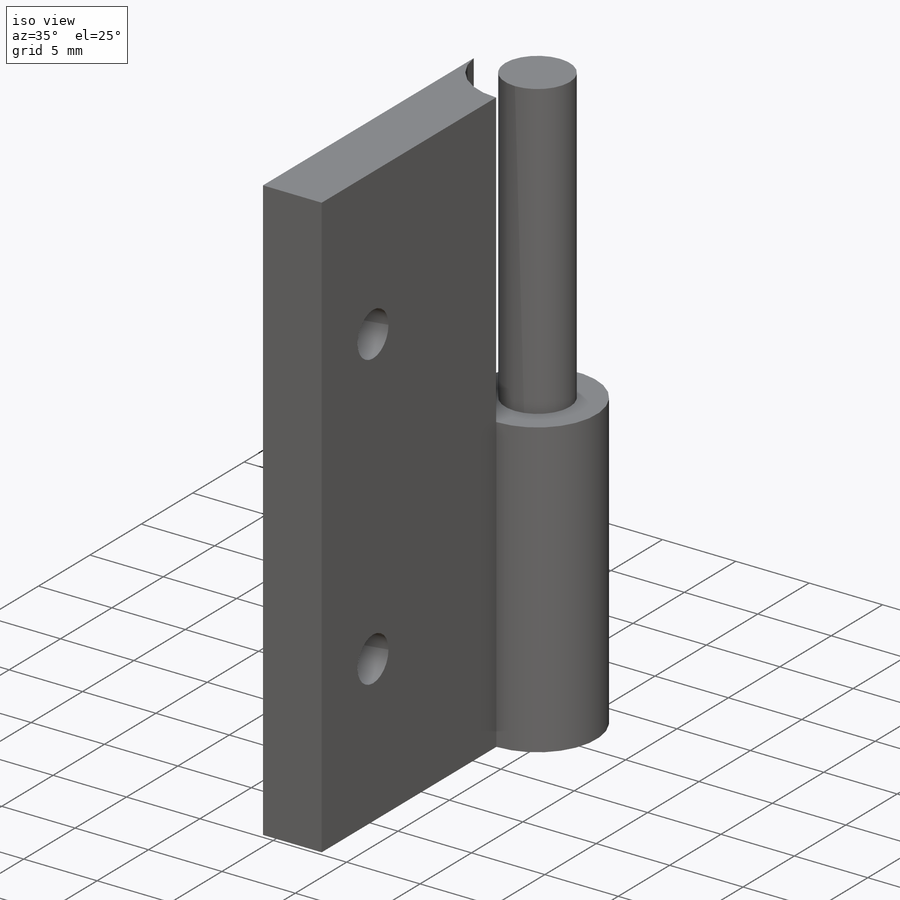
[diagram: iso view]
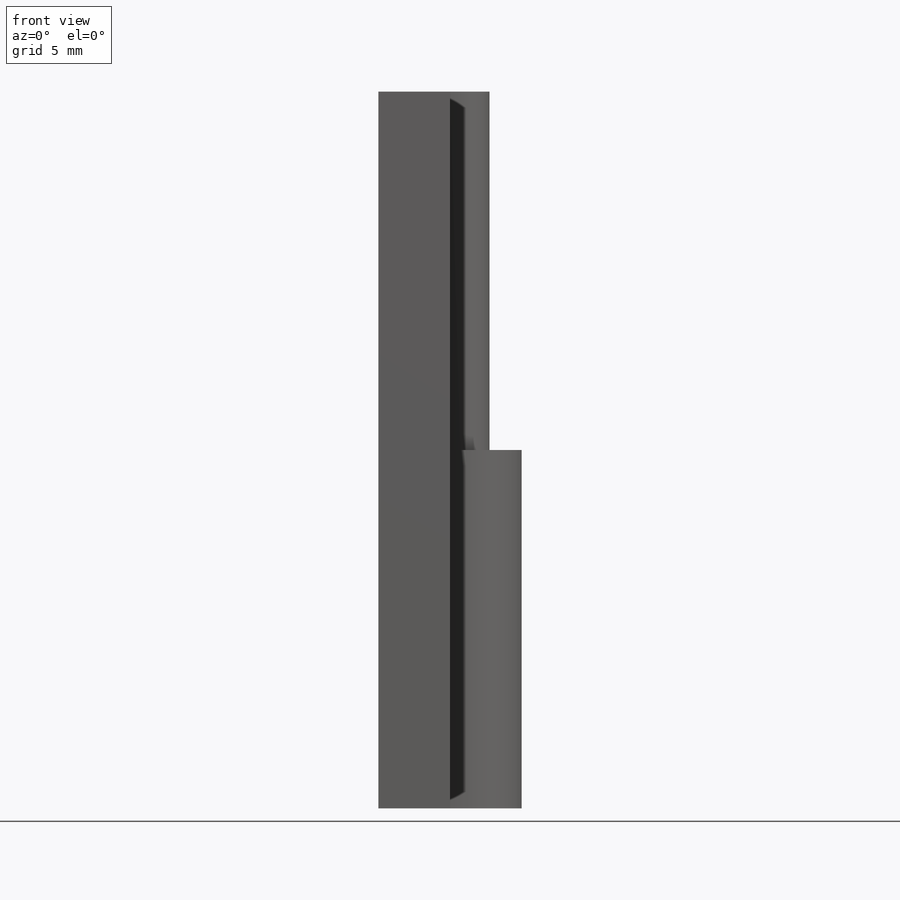
[diagram: front view]
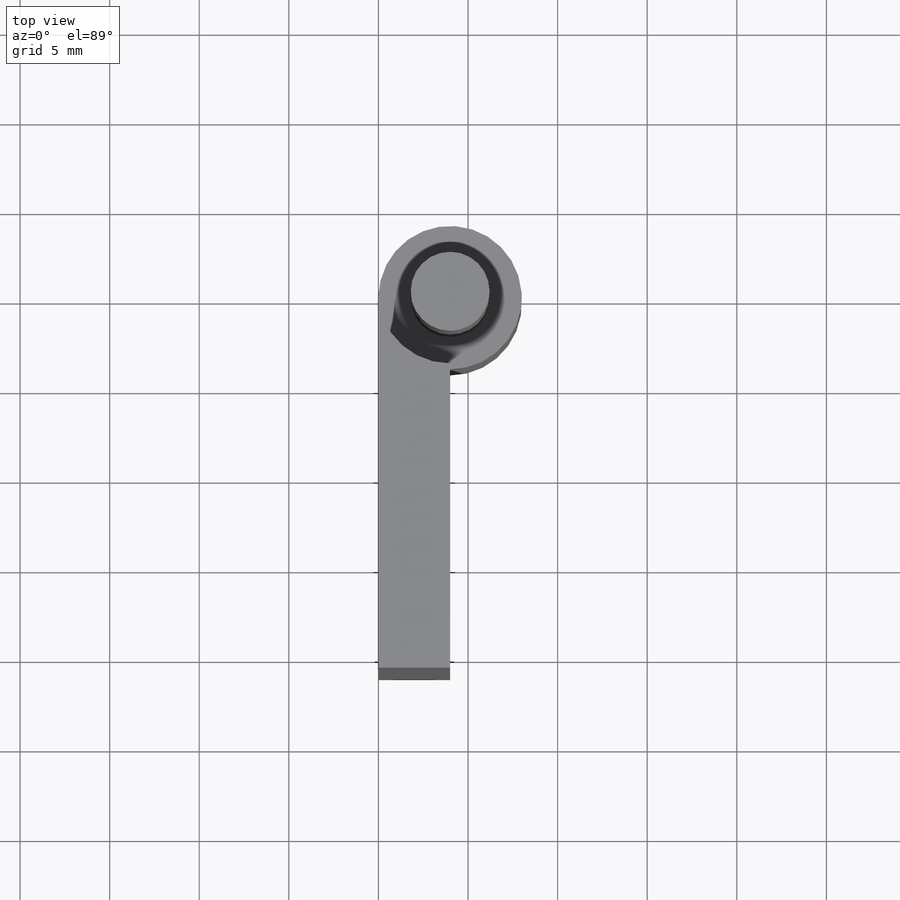
[diagram: top view]
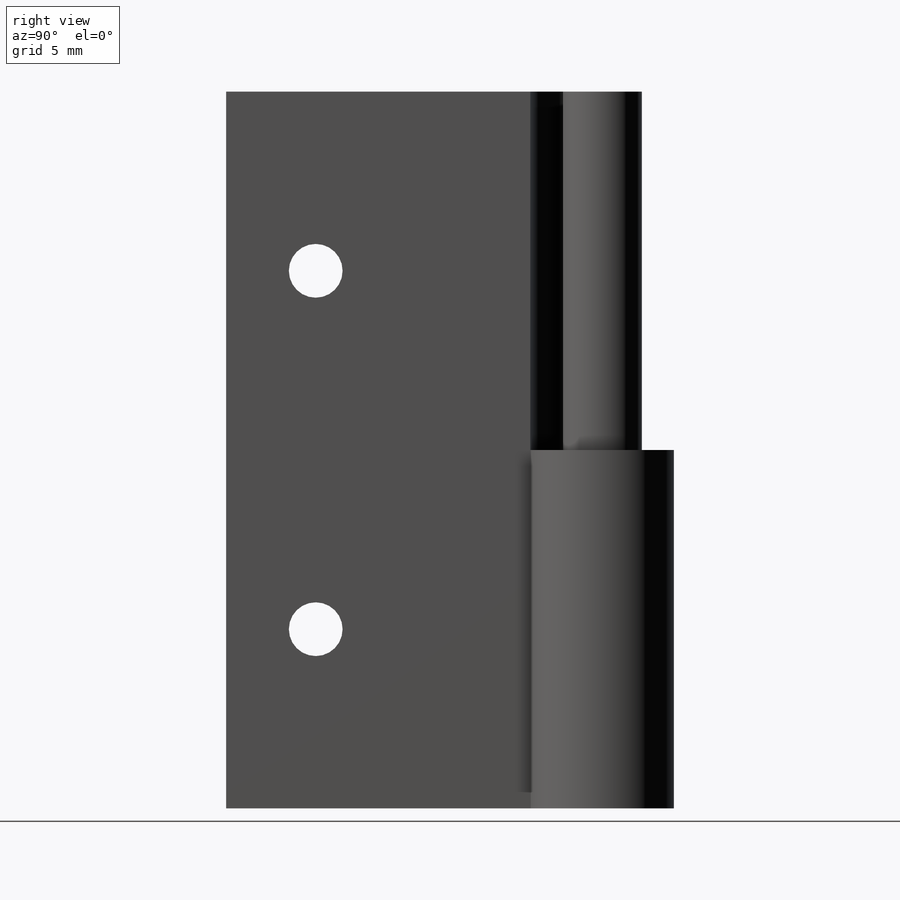
[diagram: right view]
SOLIDWORKS PART (.sldprt)
format: sldprt  version: not decoded by parser v0  size: 173,568 bytes
history: native  units: mm
features: sketch x5, cut_extrude x2, material x1, sweep x1 (+11 scaffold rows collapsed)
feature tree (20):
  scaffold x11  (default folders/planes/origin — collapsed)
  material  "Material <not specified>"
  sketch  "Sketch1"  dims[c1.D1=40.0mm c2.D1=21.0mm c2.D5=4.0mm c2.D6=1.0mm c2.D7=5.0mm]
  sketch  "Sketch4"
  sweep  "Sweep3"
  sketch  "Sketch12"  dims[D1=4.04mm]
  sketch  "Sketch15"  dims[D1=~2.191269mm]
  cut_extrude  "Cut-Extrude14"  Depth=20mm
  sketch  "Sketch13"  dims[c1.D1=4.0mm c1.D2=4.0mm c1.D3=11.0mm c1.D4=9.5mm c1.D5=6.0mm c1.D6=7.0mm c1.D7=~10.539184mm c2.D1=8.0mm c2.D2=9.97mm c2.D3=5.5mm c2.D4=5.5mm c2.D5=7.0mm c3.D1=10.0mm c3.D2=10.0mm c3.D3=16.0mm c3.D4=6.0mm]
  cut_extrude  "Cut-Extrude10"  [1 undecoded]
decode coverage: 5 of 8 modeling features carry decoded parameters
note: ~ marks probable driven/reference dimensions
note: 1 parameter value undecoded
note: suppression state not decoded; provenance and decode notes live in map.json
